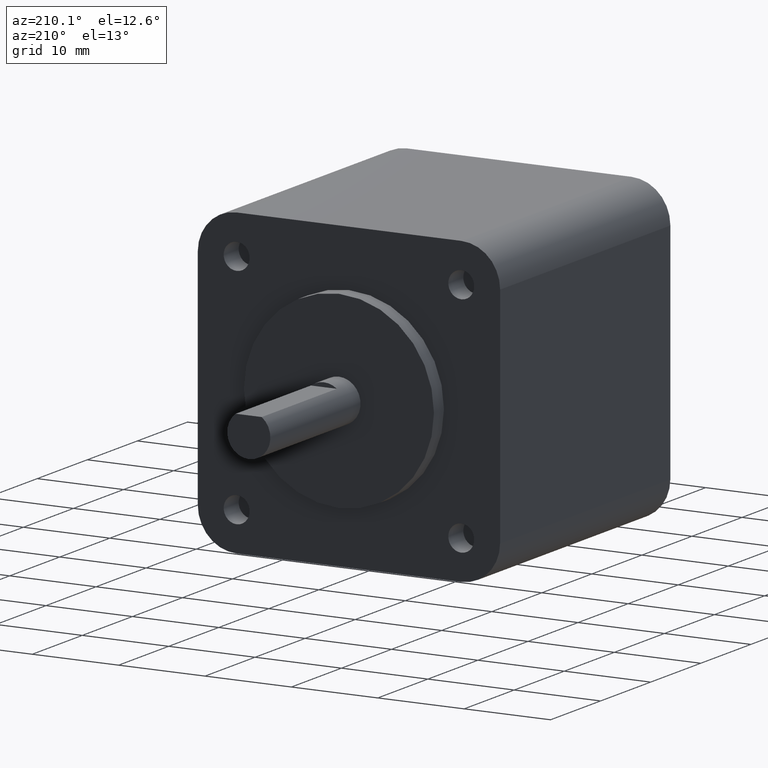
[diagram: clean part render]
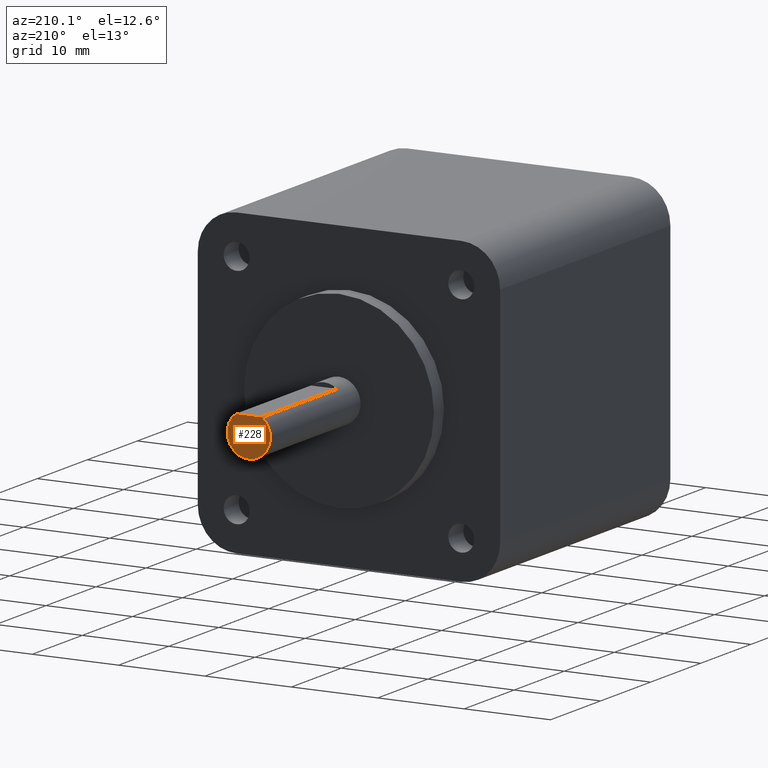
[diagram: same view with one face highlighted and labeled with its STEP entity id]
A machine part, auxiliary view. The second image highlights one B-rep face of the part: STEP entity #228.
In plain terms, the highlighted planar face has unit normal (0, 1, 0).
Its self-contained STEP definition (entity closure, byte-faithful):
#15 = ORIENTED_EDGE ( 'NONE', *, *, #111, .T. ) ;
#107 = DIRECTION ( 'NONE',  ( 0.0000000000000000000, 1.000000000000000000, 0.0000000000000000000 ) ) ;
#111 = EDGE_CURVE ( 'NONE', #766, #718, #550, .T. ) ;
#156 = VERTEX_POINT ( 'NONE', #777 ) ;
#213 = CARTESIAN_POINT ( 'NONE',  ( 0.0000000000000000000, 54.00000000000000700, -2.500000000000000000 ) ) ;
#228 = ADVANCED_FACE ( 'NONE', ( #810 ), #635, .T. ) ;
#235 = CARTESIAN_POINT ( 'NONE',  ( 0.0000000000000000000, 54.00000000000000700, 0.0000000000000000000 ) ) ;
#300 = DIRECTION ( 'NONE',  ( 0.0000000000000000000, 0.0000000000000000000, 1.000000000000000000 ) ) ;
#321 = EDGE_CURVE ( 'NONE', #156, #766, #360, .T. ) ;
#360 = CIRCLE ( 'NONE', #566, 2.500000000000000000 ) ;
#400 = CARTESIAN_POINT ( 'NONE',  ( 0.0000000000000000000, 54.00000000000000700, 0.0000000000000000000 ) ) ;
#410 = DIRECTION ( 'NONE',  ( 0.0000000000000000000, 0.0000000000000000000, 1.000000000000000000 ) ) ;
#440 = ORIENTED_EDGE ( 'NONE', *, *, #551, .F. ) ;
#448 = DIRECTION ( 'NONE',  ( 0.0000000000000000000, 1.000000000000000000, 0.0000000000000000000 ) ) ;
#457 = AXIS2_PLACEMENT_3D ( 'NONE', #841, #107, #699 ) ;
#550 = CIRCLE ( 'NONE', #643, 2.500000000000000000 ) ;
#551 = EDGE_CURVE ( 'NONE', #156, #718, #725, .T. ) ;
#566 = AXIS2_PLACEMENT_3D ( 'NONE', #235, #448, #300 ) ;
#591 = CARTESIAN_POINT ( 'NONE',  ( -1.500000000000000200, 54.00000000000000700, 2.000000000000000000 ) ) ;
#598 = DIRECTION ( 'NONE',  ( -1.000000000000000000, -0.0000000000000000000, 2.891205793294676800E-016 ) ) ;
#635 = PLANE ( 'NONE',  #457 ) ;
#643 = AXIS2_PLACEMENT_3D ( 'NONE', #400, #806, #410 ) ;
#654 = VECTOR ( 'NONE', #598, 1000.000000000000000 ) ;
#691 = CARTESIAN_POINT ( 'NONE',  ( -1.500000000000000200, 54.00000000000000700, 2.000000000000000000 ) ) ;
#699 = DIRECTION ( 'NONE',  ( 0.0000000000000000000, -0.0000000000000000000, 1.000000000000000000 ) ) ;
#718 = VERTEX_POINT ( 'NONE', #691 ) ;
#725 = LINE ( 'NONE', #591, #654 ) ;
#728 = ORIENTED_EDGE ( 'NONE', *, *, #321, .T. ) ;
#766 = VERTEX_POINT ( 'NONE', #213 ) ;
#777 = CARTESIAN_POINT ( 'NONE',  ( 1.500000000000001300, 54.00000000000000700, 1.999999999999999100 ) ) ;
#806 = DIRECTION ( 'NONE',  ( 0.0000000000000000000, 1.000000000000000000, 0.0000000000000000000 ) ) ;
#810 = FACE_OUTER_BOUND ( 'NONE', #878, .T. ) ;
#841 = CARTESIAN_POINT ( 'NONE',  ( 0.0000000000000000000, 54.00000000000000700, 0.0000000000000000000 ) ) ;
#878 = EDGE_LOOP ( 'NONE', ( #440, #728, #15 ) ) ;